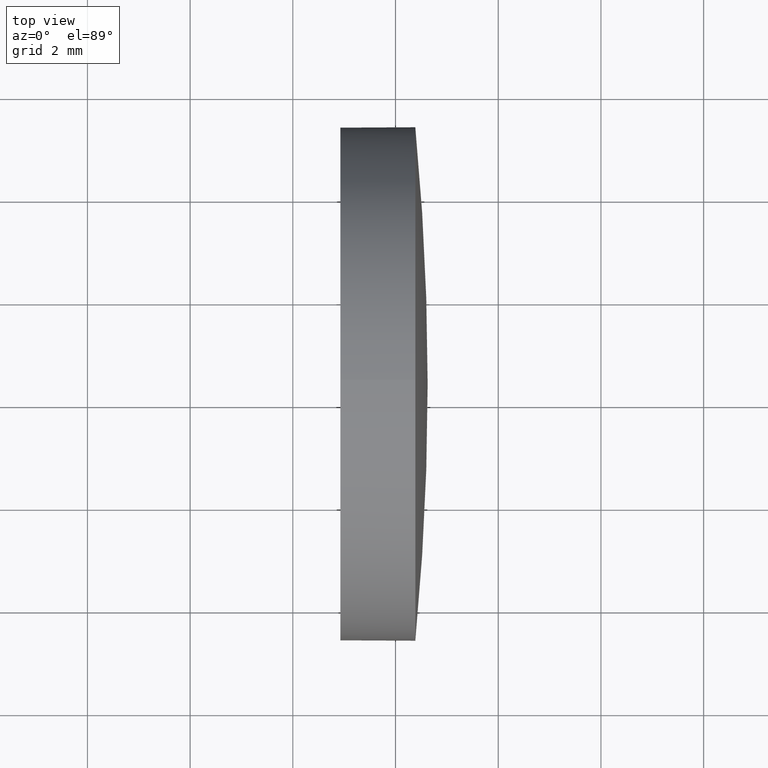
[diagram: clean part render]
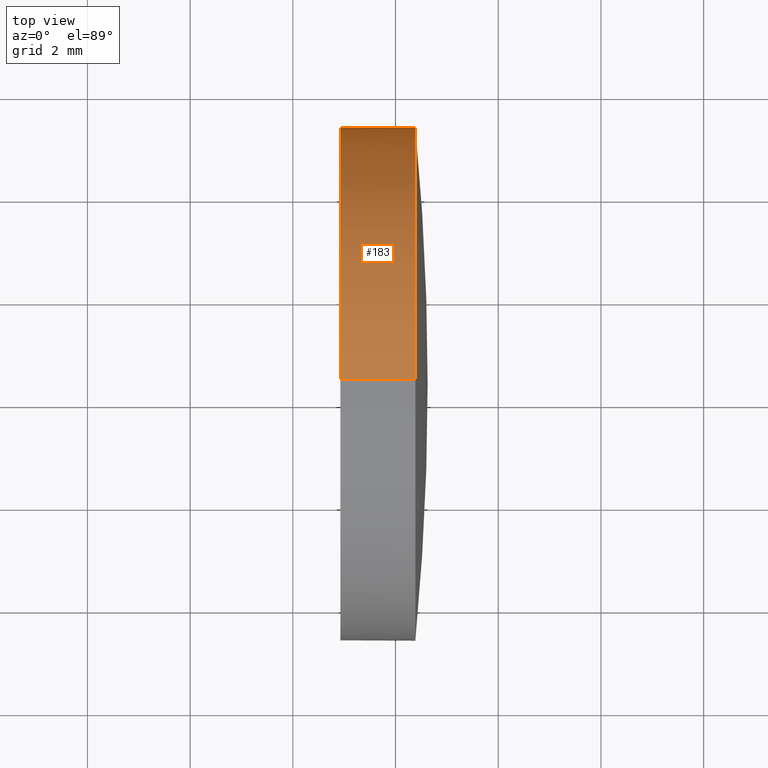
[diagram: same view with one face highlighted and labeled with its STEP entity id]
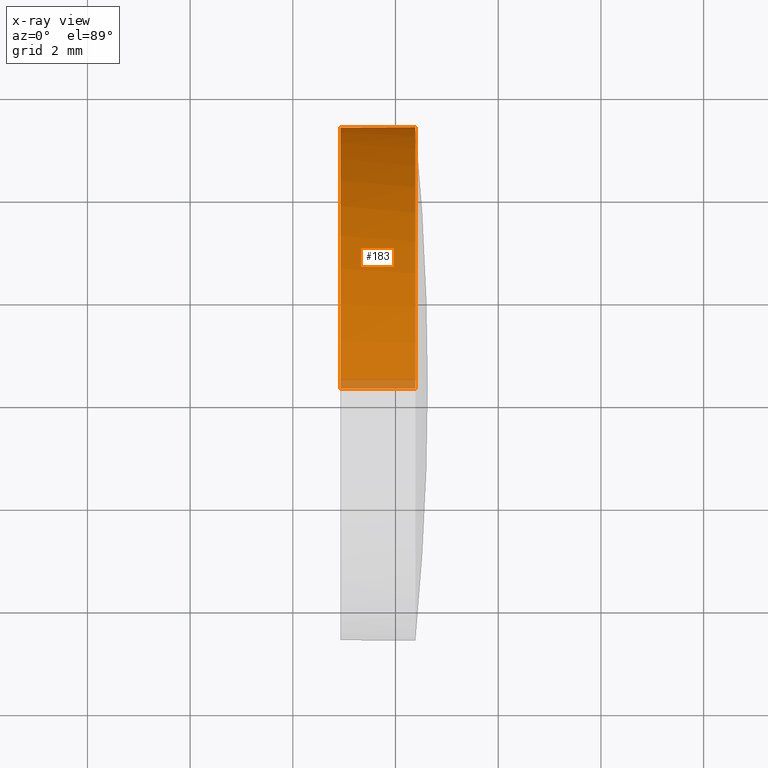
[diagram: x-ray of the same camera — body ghosted, the highlighted face saturated]
A machine part, top view. The second image highlights one B-rep face of the part: STEP entity #183.
The next image is the same camera in x-ray: the body ghosted, the highlighted face saturated — about 3% of this face is hidden behind the body in this view.
In plain terms, the highlighted cylindrical surface (partial cylindrical patch) has radius 5 mm, axis along (-1, -0, -0).
Its self-contained STEP definition (entity closure, byte-faithful):
#1 = AXIS2_PLACEMENT_3D ( 'NONE', #62, #94, #125 ) ;
#3 = CARTESIAN_POINT ( 'NONE',  ( 421.9839904776718500, 168.3692814147028700, 5.000000000000004400 ) ) ;
#5 = EDGE_CURVE ( 'NONE', #13, #111, #172, .T. ) ;
#8 = LINE ( 'NONE', #20, #133 ) ;
#10 = VERTEX_POINT ( 'NONE', #74 ) ;
#11 = DIRECTION ( 'NONE',  ( -1.000000000000000000, -0.0000000000000000000, -0.0000000000000000000 ) ) ;
#13 = VERTEX_POINT ( 'NONE', #91 ) ;
#18 = AXIS2_PLACEMENT_3D ( 'NONE', #124, #11, #165 ) ;
#20 = CARTESIAN_POINT ( 'NONE',  ( 421.9839904776718500, 168.3692814147028700, -5.000000000000004400 ) ) ;
#22 = DIRECTION ( 'NONE',  ( -1.000000000000000000, -0.0000000000000000000, -0.0000000000000000000 ) ) ;
#23 = CARTESIAN_POINT ( 'NONE',  ( 422.9255409494463700, 168.3692814147028700, 0.0000000000000000000 ) ) ;
#27 = CIRCLE ( 'NONE', #18, 5.000000000000004400 ) ;
#28 = ORIENTED_EDGE ( 'NONE', *, *, #60, .T. ) ;
#37 = CARTESIAN_POINT ( 'NONE',  ( 422.9255409494463700, 168.3692814147028700, -5.000000000000004400 ) ) ;
#39 = DIRECTION ( 'NONE',  ( -1.000000000000000000, -0.0000000000000000000, -0.0000000000000000000 ) ) ;
#42 = VECTOR ( 'NONE', #145, 1000.000000000000000 ) ;
#43 = EDGE_CURVE ( 'NONE', #111, #176, #184, .T. ) ;
#46 = EDGE_CURVE ( 'NONE', #71, #176, #8, .T. ) ;
#56 = CIRCLE ( 'NONE', #1, 5.000000000000004400 ) ;
#57 = FACE_OUTER_BOUND ( 'NONE', #129, .T. ) ;
#60 = EDGE_CURVE ( 'NONE', #13, #10, #56, .T. ) ;
#62 = CARTESIAN_POINT ( 'NONE',  ( 424.3855409494462900, 168.3692814147028700, 0.0000000000000000000 ) ) ;
#71 = VERTEX_POINT ( 'NONE', #136 ) ;
#74 = CARTESIAN_POINT ( 'NONE',  ( 424.3855409494462900, 173.3692814147028700, 0.0000000000000000000 ) ) ;
#75 = EDGE_CURVE ( 'NONE', #10, #71, #27, .T. ) ;
#82 = CARTESIAN_POINT ( 'NONE',  ( 421.9839904776718500, 168.3692814147028700, 0.0000000000000000000 ) ) ;
#85 = DIRECTION ( 'NONE',  ( 0.0000000000000000000, 0.0000000000000000000, 1.000000000000000000 ) ) ;
#91 = CARTESIAN_POINT ( 'NONE',  ( 424.3855409494462900, 168.3692814147028700, 5.000000000000004400 ) ) ;
#92 = ORIENTED_EDGE ( 'NONE', *, *, #75, .T. ) ;
#93 = DIRECTION ( 'NONE',  ( -1.000000000000000000, -0.0000000000000000000, -0.0000000000000000000 ) ) ;
#94 = DIRECTION ( 'NONE',  ( -1.000000000000000000, -0.0000000000000000000, -0.0000000000000000000 ) ) ;
#111 = VERTEX_POINT ( 'NONE', #157 ) ;
#117 = AXIS2_PLACEMENT_3D ( 'NONE', #82, #39, #85 ) ;
#122 = AXIS2_PLACEMENT_3D ( 'NONE', #23, #22, #156 ) ;
#123 = ORIENTED_EDGE ( 'NONE', *, *, #5, .F. ) ;
#124 = CARTESIAN_POINT ( 'NONE',  ( 424.3855409494462900, 168.3692814147028700, 0.0000000000000000000 ) ) ;
#125 = DIRECTION ( 'NONE',  ( 0.0000000000000000000, 0.0000000000000000000, 1.000000000000000000 ) ) ;
#129 = EDGE_LOOP ( 'NONE', ( #92, #131, #150, #123, #28 ) ) ;
#131 = ORIENTED_EDGE ( 'NONE', *, *, #46, .T. ) ;
#133 = VECTOR ( 'NONE', #93, 1000.000000000000000 ) ;
#136 = CARTESIAN_POINT ( 'NONE',  ( 424.3855409494462900, 168.3692814147028700, -5.000000000000004400 ) ) ;
#145 = DIRECTION ( 'NONE',  ( -1.000000000000000000, -0.0000000000000000000, -0.0000000000000000000 ) ) ;
#146 = CYLINDRICAL_SURFACE ( 'NONE', #117, 5.000000000000004400 ) ;
#150 = ORIENTED_EDGE ( 'NONE', *, *, #43, .F. ) ;
#156 = DIRECTION ( 'NONE',  ( 0.0000000000000000000, 0.0000000000000000000, 1.000000000000000000 ) ) ;
#157 = CARTESIAN_POINT ( 'NONE',  ( 422.9255409494463700, 168.3692814147028700, 5.000000000000004400 ) ) ;
#165 = DIRECTION ( 'NONE',  ( 0.0000000000000000000, 0.0000000000000000000, 1.000000000000000000 ) ) ;
#172 = LINE ( 'NONE', #3, #42 ) ;
#176 = VERTEX_POINT ( 'NONE', #37 ) ;
#183 = ADVANCED_FACE ( 'NONE', ( #57 ), #146, .T. ) ;
#184 = CIRCLE ( 'NONE', #122, 5.000000000000004400 ) ;